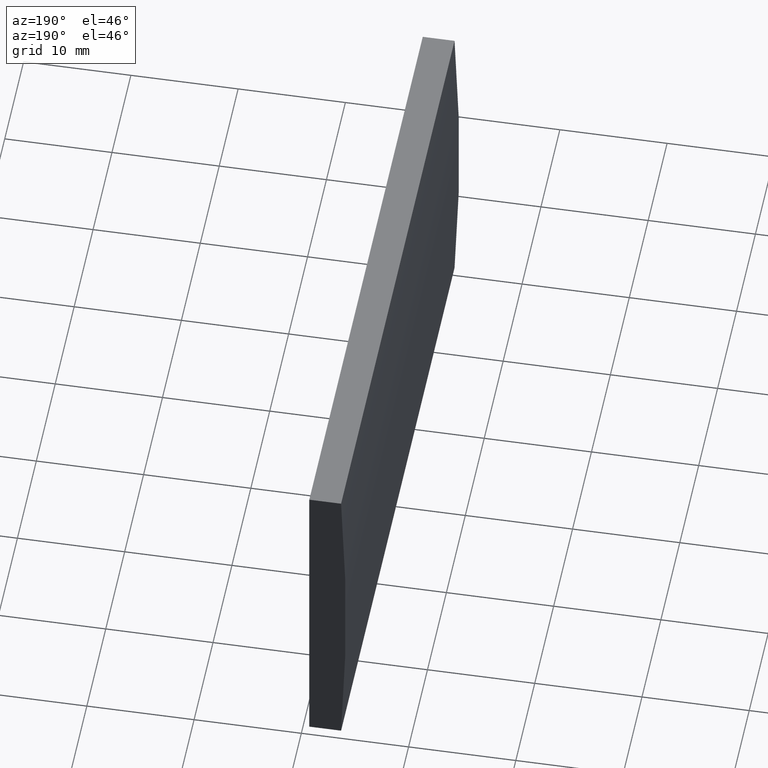
[diagram: clean part render]
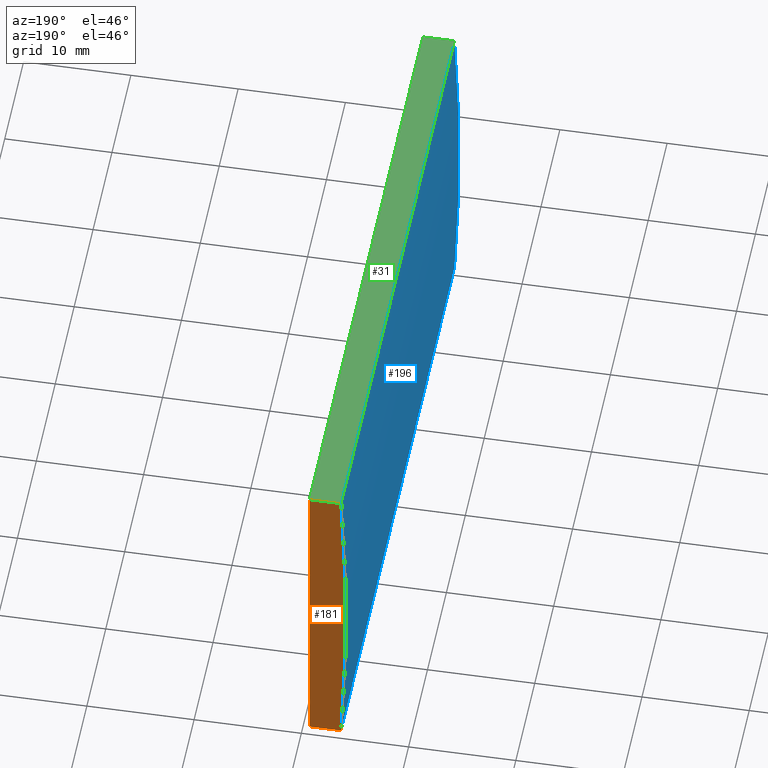
[diagram: same view with three faces highlighted in distinct colors, each labeled with its STEP entity id]
A machine part, auxiliary view with three faces highlighted in distinct colors.
Their STEP definitions:

[orange] entity #181 — the highlighted planar face has unit normal (0, 1, 0).
#2 = EDGE_LOOP ( 'NONE', ( #96, #19, #172, #28 ) ) ;
#3 = VECTOR ( 'NONE', #130, 1000.000000000000000 ) ;
#4 = VERTEX_POINT ( 'NONE', #147 ) ;
#8 = EDGE_CURVE ( 'NONE', #48, #4, #73, .T. ) ;
#11 = FACE_OUTER_BOUND ( 'NONE', #2, .T. ) ;
#19 = ORIENTED_EDGE ( 'NONE', *, *, #203, .T. ) ;
#28 = ORIENTED_EDGE ( 'NONE', *, *, #38, .T. ) ;
#29 = LINE ( 'NONE', #138, #144 ) ;
#34 = DIRECTION ( 'NONE',  ( -0.0000000000000000000, -0.0000000000000000000, -1.000000000000000000 ) ) ;
#38 = EDGE_CURVE ( 'NONE', #79, #48, #53, .T. ) ;
#44 = CARTESIAN_POINT ( 'NONE',  ( -253.7092256046504700, 60.00000000000000000, -15.00000000000000000 ) ) ;
#48 = VERTEX_POINT ( 'NONE', #44 ) ;
#51 = DIRECTION ( 'NONE',  ( 1.000000000000000000, 0.0000000000000000000, 0.0000000000000000000 ) ) ;
#53 = LINE ( 'NONE', #80, #3 ) ;
#57 = DIRECTION ( 'NONE',  ( 0.0000000000000000000, -0.0000000000000000000, 1.000000000000000000 ) ) ;
#69 = CARTESIAN_POINT ( 'NONE',  ( -250.7447956651487300, 60.00000000000000000, -14.99999999999997200 ) ) ;
#71 = DIRECTION ( 'NONE',  ( 0.0000000000000000000, 1.000000000000000000, 0.0000000000000000000 ) ) ;
#73 = CIRCLE ( 'NONE', #118, 258.5000000000000000 ) ;
#74 = PLANE ( 'NONE',  #106 ) ;
#79 = VERTEX_POINT ( 'NONE', #69 ) ;
#80 = CARTESIAN_POINT ( 'NONE',  ( -253.7092256046504700, 60.00000000000000000, -15.00000000000000000 ) ) ;
#82 = CARTESIAN_POINT ( 'NONE',  ( -253.7092256046504700, 60.00000000000000000, 15.00000000000000000 ) ) ;
#96 = ORIENTED_EDGE ( 'NONE', *, *, #8, .T. ) ;
#101 = CARTESIAN_POINT ( 'NONE',  ( -250.7447956651487300, 60.00000000000000000, 15.00000000000000000 ) ) ;
#106 = AXIS2_PLACEMENT_3D ( 'NONE', #135, #71, #57 ) ;
#111 = VERTEX_POINT ( 'NONE', #101 ) ;
#118 = AXIS2_PLACEMENT_3D ( 'NONE', #154, #145, #149 ) ;
#130 = DIRECTION ( 'NONE',  ( -1.000000000000000000, -0.0000000000000000000, -9.362871169859394600E-015 ) ) ;
#135 = CARTESIAN_POINT ( 'NONE',  ( 4.355204334851265500, 60.00000000000000000, 4.286263797015675000E-017 ) ) ;
#138 = CARTESIAN_POINT ( 'NONE',  ( -250.7447956651487300, 60.00000000000000000, -14.99999999999997200 ) ) ;
#144 = VECTOR ( 'NONE', #34, 1000.000000000000000 ) ;
#145 = DIRECTION ( 'NONE',  ( 0.0000000000000000000, 1.000000000000000000, 0.0000000000000000000 ) ) ;
#147 = CARTESIAN_POINT ( 'NONE',  ( -253.7092256046504700, 60.00000000000000000, 15.00000000000000000 ) ) ;
#149 = DIRECTION ( 'NONE',  ( 0.0000000000000000000, 0.0000000000000000000, 1.000000000000000000 ) ) ;
#154 = CARTESIAN_POINT ( 'NONE',  ( 4.355204334851265500, 60.00000000000000000, 4.286263797015675000E-017 ) ) ;
#158 = EDGE_CURVE ( 'NONE', #111, #79, #29, .T. ) ;
#172 = ORIENTED_EDGE ( 'NONE', *, *, #158, .T. ) ;
#181 = ADVANCED_FACE ( 'NONE', ( #11 ), #74, .T. ) ;
#185 = LINE ( 'NONE', #82, #191 ) ;
#191 = VECTOR ( 'NONE', #51, 1000.000000000000000 ) ;
#203 = EDGE_CURVE ( 'NONE', #4, #111, #185, .T. ) ;

[blue] entity #196 — the highlighted cylindrical surface (partial cylindrical patch) has radius 258.5 mm, axis along (-0, -1, -0).
#4 = VERTEX_POINT ( 'NONE', #147 ) ;
#8 = EDGE_CURVE ( 'NONE', #48, #4, #73, .T. ) ;
#13 = VECTOR ( 'NONE', #27, 1000.000000000000000 ) ;
#17 = EDGE_CURVE ( 'NONE', #48, #24, #134, .T. ) ;
#18 = DIRECTION ( 'NONE',  ( -0.0000000000000000000, -1.000000000000000000, -0.0000000000000000000 ) ) ;
#24 = VERTEX_POINT ( 'NONE', #161 ) ;
#27 = DIRECTION ( 'NONE',  ( -0.0000000000000000000, -1.000000000000000000, -0.0000000000000000000 ) ) ;
#30 = ORIENTED_EDGE ( 'NONE', *, *, #188, .T. ) ;
#32 = CARTESIAN_POINT ( 'NONE',  ( 4.355204334851265500, 0.0000000000000000000, 4.286263797015675000E-017 ) ) ;
#44 = CARTESIAN_POINT ( 'NONE',  ( -253.7092256046504700, 60.00000000000000000, -15.00000000000000000 ) ) ;
#45 = ORIENTED_EDGE ( 'NONE', *, *, #17, .T. ) ;
#48 = VERTEX_POINT ( 'NONE', #44 ) ;
#49 = DIRECTION ( 'NONE',  ( -0.0000000000000000000, -1.000000000000000000, -0.0000000000000000000 ) ) ;
#67 = LINE ( 'NONE', #166, #167 ) ;
#73 = CIRCLE ( 'NONE', #118, 258.5000000000000000 ) ;
#78 = CIRCLE ( 'NONE', #193, 258.5000000000000000 ) ;
#90 = EDGE_CURVE ( 'NONE', #4, #169, #67, .T. ) ;
#100 = CARTESIAN_POINT ( 'NONE',  ( 4.355204334851265500, 60.00000000000000000, 4.286263797015675000E-017 ) ) ;
#103 = CARTESIAN_POINT ( 'NONE',  ( -253.7092256046504700, 60.00000000000000000, -15.00000000000000000 ) ) ;
#104 = ORIENTED_EDGE ( 'NONE', *, *, #90, .F. ) ;
#107 = CARTESIAN_POINT ( 'NONE',  ( -253.7092256046504700, 0.0000000000000000000, 15.00000000000000000 ) ) ;
#108 = DIRECTION ( 'NONE',  ( 0.0000000000000000000, 1.000000000000000000, 0.0000000000000000000 ) ) ;
#110 = DIRECTION ( 'NONE',  ( 0.0000000000000000000, 0.0000000000000000000, 1.000000000000000000 ) ) ;
#118 = AXIS2_PLACEMENT_3D ( 'NONE', #154, #145, #149 ) ;
#134 = LINE ( 'NONE', #103, #13 ) ;
#145 = DIRECTION ( 'NONE',  ( 0.0000000000000000000, 1.000000000000000000, 0.0000000000000000000 ) ) ;
#147 = CARTESIAN_POINT ( 'NONE',  ( -253.7092256046504700, 60.00000000000000000, 15.00000000000000000 ) ) ;
#149 = DIRECTION ( 'NONE',  ( 0.0000000000000000000, 0.0000000000000000000, 1.000000000000000000 ) ) ;
#150 = AXIS2_PLACEMENT_3D ( 'NONE', #100, #18, #173 ) ;
#152 = EDGE_LOOP ( 'NONE', ( #30, #104, #202, #45 ) ) ;
#154 = CARTESIAN_POINT ( 'NONE',  ( 4.355204334851265500, 60.00000000000000000, 4.286263797015675000E-017 ) ) ;
#161 = CARTESIAN_POINT ( 'NONE',  ( -253.7092256046504700, 0.0000000000000000000, -15.00000000000000000 ) ) ;
#166 = CARTESIAN_POINT ( 'NONE',  ( -253.7092256046504700, 60.00000000000000000, 15.00000000000000000 ) ) ;
#167 = VECTOR ( 'NONE', #49, 1000.000000000000000 ) ;
#169 = VERTEX_POINT ( 'NONE', #107 ) ;
#173 = DIRECTION ( 'NONE',  ( 0.0000000000000000000, 0.0000000000000000000, -1.000000000000000000 ) ) ;
#184 = CYLINDRICAL_SURFACE ( 'NONE', #150, 258.5000000000000000 ) ;
#188 = EDGE_CURVE ( 'NONE', #24, #169, #78, .T. ) ;
#193 = AXIS2_PLACEMENT_3D ( 'NONE', #32, #108, #110 ) ;
#196 = ADVANCED_FACE ( 'NONE', ( #204 ), #184, .T. ) ;
#202 = ORIENTED_EDGE ( 'NONE', *, *, #8, .F. ) ;
#204 = FACE_OUTER_BOUND ( 'NONE', #152, .T. ) ;

[green] entity #31 — the highlighted planar face has unit normal (0, 0, -1).
#4 = VERTEX_POINT ( 'NONE', #147 ) ;
#5 = CARTESIAN_POINT ( 'NONE',  ( -250.7447956651487300, 60.00000000000000000, 15.00000000000000000 ) ) ;
#6 = ORIENTED_EDGE ( 'NONE', *, *, #203, .F. ) ;
#23 = FACE_OUTER_BOUND ( 'NONE', #72, .T. ) ;
#26 = ORIENTED_EDGE ( 'NONE', *, *, #182, .F. ) ;
#31 = ADVANCED_FACE ( 'NONE', ( #23 ), #114, .F. ) ;
#41 = EDGE_CURVE ( 'NONE', #169, #85, #168, .T. ) ;
#49 = DIRECTION ( 'NONE',  ( -0.0000000000000000000, -1.000000000000000000, -0.0000000000000000000 ) ) ;
#51 = DIRECTION ( 'NONE',  ( 1.000000000000000000, 0.0000000000000000000, 0.0000000000000000000 ) ) ;
#55 = DIRECTION ( 'NONE',  ( 1.000000000000000000, 0.0000000000000000000, 0.0000000000000000000 ) ) ;
#65 = CARTESIAN_POINT ( 'NONE',  ( -250.7447956651487300, 0.0000000000000000000, 15.00000000000000000 ) ) ;
#67 = LINE ( 'NONE', #166, #167 ) ;
#72 = EDGE_LOOP ( 'NONE', ( #187, #26, #6, #91 ) ) ;
#82 = CARTESIAN_POINT ( 'NONE',  ( -253.7092256046504700, 60.00000000000000000, 15.00000000000000000 ) ) ;
#85 = VERTEX_POINT ( 'NONE', #65 ) ;
#90 = EDGE_CURVE ( 'NONE', #4, #169, #67, .T. ) ;
#91 = ORIENTED_EDGE ( 'NONE', *, *, #90, .T. ) ;
#97 = DIRECTION ( 'NONE',  ( -1.000000000000000000, 0.0000000000000000000, -0.0000000000000000000 ) ) ;
#101 = CARTESIAN_POINT ( 'NONE',  ( -250.7447956651487300, 60.00000000000000000, 15.00000000000000000 ) ) ;
#102 = CARTESIAN_POINT ( 'NONE',  ( -253.7092256046504700, 0.0000000000000000000, 15.00000000000000000 ) ) ;
#107 = CARTESIAN_POINT ( 'NONE',  ( -253.7092256046504700, 0.0000000000000000000, 15.00000000000000000 ) ) ;
#109 = DIRECTION ( 'NONE',  ( 0.0000000000000000000, 0.0000000000000000000, -1.000000000000000000 ) ) ;
#111 = VERTEX_POINT ( 'NONE', #101 ) ;
#114 = PLANE ( 'NONE',  #159 ) ;
#127 = VECTOR ( 'NONE', #174, 1000.000000000000000 ) ;
#147 = CARTESIAN_POINT ( 'NONE',  ( -253.7092256046504700, 60.00000000000000000, 15.00000000000000000 ) ) ;
#148 = CARTESIAN_POINT ( 'NONE',  ( -253.7092256046504700, 60.00000000000000000, 15.00000000000000000 ) ) ;
#159 = AXIS2_PLACEMENT_3D ( 'NONE', #148, #109, #97 ) ;
#165 = VECTOR ( 'NONE', #55, 1000.000000000000000 ) ;
#166 = CARTESIAN_POINT ( 'NONE',  ( -253.7092256046504700, 60.00000000000000000, 15.00000000000000000 ) ) ;
#167 = VECTOR ( 'NONE', #49, 1000.000000000000000 ) ;
#168 = LINE ( 'NONE', #102, #165 ) ;
#169 = VERTEX_POINT ( 'NONE', #107 ) ;
#174 = DIRECTION ( 'NONE',  ( -0.0000000000000000000, -1.000000000000000000, -0.0000000000000000000 ) ) ;
#182 = EDGE_CURVE ( 'NONE', #111, #85, #190, .T. ) ;
#185 = LINE ( 'NONE', #82, #191 ) ;
#187 = ORIENTED_EDGE ( 'NONE', *, *, #41, .T. ) ;
#190 = LINE ( 'NONE', #5, #127 ) ;
#191 = VECTOR ( 'NONE', #51, 1000.000000000000000 ) ;
#203 = EDGE_CURVE ( 'NONE', #4, #111, #185, .T. ) ;